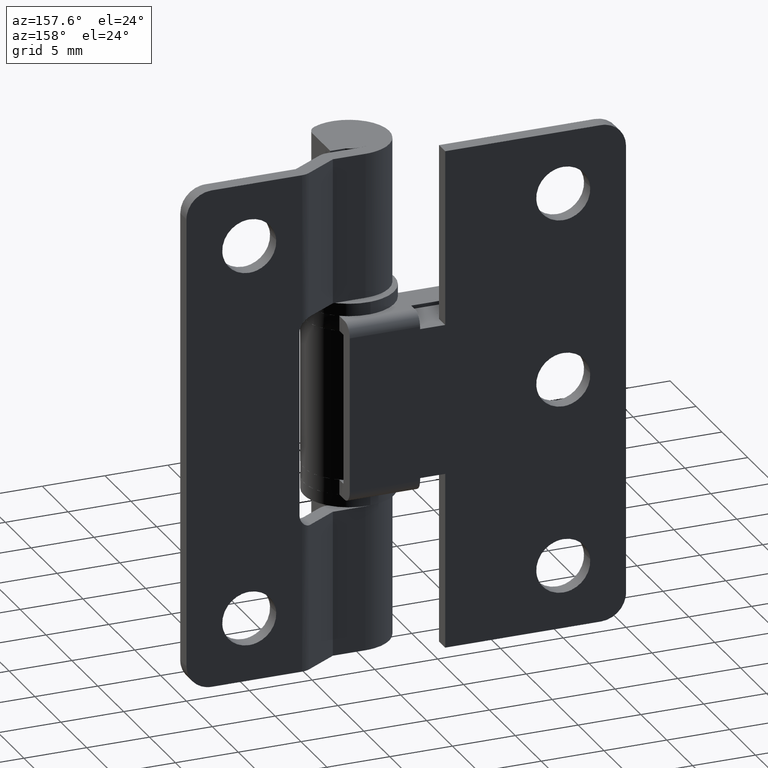
[diagram: clean part render]
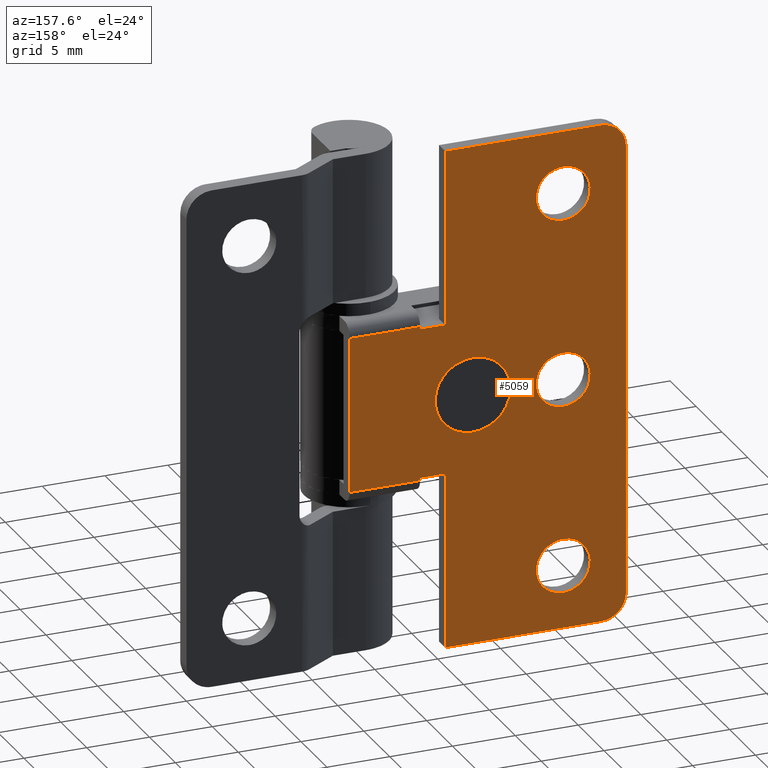
[diagram: same view with one face highlighted and labeled with its STEP entity id]
A machine part, auxiliary view. The second image highlights one B-rep face of the part: STEP entity #5059.
In plain terms, the highlighted face is a freeform B-spline surface patch.
Its self-contained STEP definition (entity closure, byte-faithful):
#4054=CARTESIAN_POINT('',(-4.805595604714565,5.000000000028292,20.183145618859559));
#4055=VERTEX_POINT('',#4054);
#4056=CARTESIAN_POINT('',(-7.800000000000000,5.0,17.0));
#4057=VERTEX_POINT('',#4056);
#4058=CARTESIAN_POINT('',(-4.805595604714566,5.000000000028292,20.183145618859566));
#4059=CARTESIAN_POINT('',(-4.799999999965211,5.000000000027887,20.091658290024675));
#4060=CARTESIAN_POINT('',(-4.799999999965750,5.000000000027455,20.000000000002100));
#4061=CARTESIAN_POINT('',(-4.799999999983398,5.000000000013308,17.000000000001020));
#4062=CARTESIAN_POINT('',(-7.800000000000000,5.0,17.0));
#4070=(BOUNDED_CURVE()B_SPLINE_CURVE(2,(#4058,#4059,#4060,#4061,#4062),.UNSPECIFIED.,.F.,.U.)B_SPLINE_CURVE_WITH_KNOTS((3,2,3),(0.239332962227399,0.250000000000000,0.500000000000000),.UNSPECIFIED.)CURVE()GEOMETRIC_REPRESENTATION_ITEM()RATIONAL_B_SPLINE_CURVE((0.976072041641977,0.987502787886313,1.0,0.707106781186548,1.0))REPRESENTATION_ITEM(''));
#4071=EDGE_CURVE('',#4055,#4057,#4070,.T.);
#4073=CARTESIAN_POINT('',(-10.794404395285440,5.000000000028292,19.816854381140441));
#4074=VERTEX_POINT('',#4073);
#4075=CARTESIAN_POINT('',(-7.800000000000000,5.0,17.0));
#4076=CARTESIAN_POINT('',(-10.622118200496001,5.000000000014147,16.999999999998920));
#4077=CARTESIAN_POINT('',(-10.794404395285436,5.000000000028293,19.816854381140441));
#4085=(BOUNDED_CURVE()B_SPLINE_CURVE(2,(#4075,#4076,#4077),.UNSPECIFIED.,.F.,.U.)B_SPLINE_CURVE_WITH_KNOTS((3,3),(0.500000000000000,0.739332962227399),.UNSPECIFIED.)CURVE()GEOMETRIC_REPRESENTATION_ITEM()RATIONAL_B_SPLINE_CURVE((1.0,0.719603993300235,0.976072041641977))REPRESENTATION_ITEM(''));
#4086=EDGE_CURVE('',#4057,#4074,#4085,.T.);
#4153=CARTESIAN_POINT('',(-7.800000000000000,5.0,23.0));
#4154=VERTEX_POINT('',#4153);
#4155=CARTESIAN_POINT('',(-7.800000000000000,5.0,23.0));
#4156=CARTESIAN_POINT('',(-4.977881799503997,5.000000000014147,23.000000000001080));
#4157=CARTESIAN_POINT('',(-4.805595604714566,5.000000000028292,20.183145618859562));
#4165=(BOUNDED_CURVE()B_SPLINE_CURVE(2,(#4155,#4156,#4157),.UNSPECIFIED.,.F.,.U.)B_SPLINE_CURVE_WITH_KNOTS((3,3),(0.0,0.239332962227399),.UNSPECIFIED.)CURVE()GEOMETRIC_REPRESENTATION_ITEM()RATIONAL_B_SPLINE_CURVE((1.0,0.719603993300234,0.976072041641978))REPRESENTATION_ITEM(''));
#4166=EDGE_CURVE('',#4154,#4055,#4165,.T.);
#4200=CARTESIAN_POINT('',(-10.794404395285433,5.000000000028292,19.816854381140441));
#4201=CARTESIAN_POINT('',(-10.800000000034792,5.000000000027886,19.908341709975332));
#4202=CARTESIAN_POINT('',(-10.800000000034251,5.000000000027454,19.999999999997900));
#4203=CARTESIAN_POINT('',(-10.800000000016603,5.000000000013308,22.999999999998987));
#4204=CARTESIAN_POINT('',(-7.800000000000000,5.0,23.0));
#4212=(BOUNDED_CURVE()B_SPLINE_CURVE(2,(#4200,#4201,#4202,#4203,#4204),.UNSPECIFIED.,.F.,.U.)B_SPLINE_CURVE_WITH_KNOTS((3,2,3),(0.739332962227399,0.750000000000000,1.0),.UNSPECIFIED.)CURVE()GEOMETRIC_REPRESENTATION_ITEM()RATIONAL_B_SPLINE_CURVE((0.976072041641978,0.987502787886313,1.0,0.707106781186548,1.0))REPRESENTATION_ITEM(''));
#4213=EDGE_CURVE('',#4074,#4154,#4212,.T.);
#4236=CARTESIAN_POINT('',(-15.0,5.0,37.150000000000013));
#4237=VERTEX_POINT('',#4236);
#4238=CARTESIAN_POINT('',(-17.143372267522381,5.0,35.168687055863693));
#4239=VERTEX_POINT('',#4238);
#4240=CARTESIAN_POINT('',(-15.0,5.0,37.150000000000013));
#4241=CARTESIAN_POINT('',(-16.987439557019741,5.0,37.150000000000006));
#4242=CARTESIAN_POINT('',(-17.143372267522384,5.0,35.168687055863678));
#4250=(BOUNDED_CURVE()B_SPLINE_CURVE(2,(#4240,#4241,#4242),.UNSPECIFIED.,.F.,.U.)B_SPLINE_CURVE_WITH_KNOTS((3,3),(0.0,0.236331300628863),.UNSPECIFIED.)CURVE()GEOMETRIC_REPRESENTATION_ITEM()RATIONAL_B_SPLINE_CURVE((1.0,0.723120658609771,0.969723356163668))REPRESENTATION_ITEM(''));
#4251=EDGE_CURVE('',#4237,#4239,#4250,.T.);
#4253=CARTESIAN_POINT('',(-12.856627732477619,5.0,34.831312944136322));
#4254=VERTEX_POINT('',#4253);
#4255=CARTESIAN_POINT('',(-12.856627732477619,5.0,34.831312944136315));
#4256=CARTESIAN_POINT('',(-12.850000000000001,5.0,34.915526269908995));
#4257=CARTESIAN_POINT('',(-12.850000000000000,5.0,35.0));
#4258=CARTESIAN_POINT('',(-12.849999999999998,4.999999999999999,37.150000000000006));
#4259=CARTESIAN_POINT('',(-15.0,5.0,37.150000000000013));
#4267=(BOUNDED_CURVE()B_SPLINE_CURVE(2,(#4255,#4256,#4257,#4258,#4259),.UNSPECIFIED.,.F.,.U.)B_SPLINE_CURVE_WITH_KNOTS((3,2,3),(0.736331300628862,0.750000000000000,1.0),.UNSPECIFIED.)CURVE()GEOMETRIC_REPRESENTATION_ITEM()RATIONAL_B_SPLINE_CURVE((0.969723356163666,0.983986122576776,1.0,0.707106781186547,1.0))REPRESENTATION_ITEM(''));
#4268=EDGE_CURVE('',#4254,#4237,#4267,.T.);
#4335=CARTESIAN_POINT('',(-15.0,5.0,32.850000000000001));
#4336=VERTEX_POINT('',#4335);
#4337=CARTESIAN_POINT('',(-17.143372267522381,5.000000000000001,35.168687055863671));
#4338=CARTESIAN_POINT('',(-17.149999999999999,5.0,35.084473730091020));
#4339=CARTESIAN_POINT('',(-17.149999999999999,5.0,35.0));
#4340=CARTESIAN_POINT('',(-17.149999999999999,4.999999999999999,32.850000000000009));
#4341=CARTESIAN_POINT('',(-15.0,5.0,32.850000000000001));
#4349=(BOUNDED_CURVE()B_SPLINE_CURVE(2,(#4337,#4338,#4339,#4340,#4341),.UNSPECIFIED.,.F.,.U.)B_SPLINE_CURVE_WITH_KNOTS((3,2,3),(0.236331300628863,0.250000000000000,0.500000000000000),.UNSPECIFIED.)CURVE()GEOMETRIC_REPRESENTATION_ITEM()RATIONAL_B_SPLINE_CURVE((0.969723356163668,0.983986122576777,1.0,0.707106781186547,1.0))REPRESENTATION_ITEM(''));
#4350=EDGE_CURVE('',#4239,#4336,#4349,.T.);
#4384=CARTESIAN_POINT('',(-15.0,5.0,32.850000000000001));
#4385=CARTESIAN_POINT('',(-13.012560442980259,5.000000000000001,32.850000000000009));
#4386=CARTESIAN_POINT('',(-12.856627732477612,5.0,34.831312944136322));
#4394=(BOUNDED_CURVE()B_SPLINE_CURVE(2,(#4384,#4385,#4386),.UNSPECIFIED.,.F.,.U.)B_SPLINE_CURVE_WITH_KNOTS((3,3),(0.500000000000000,0.736331300628863),.UNSPECIFIED.)CURVE()GEOMETRIC_REPRESENTATION_ITEM()RATIONAL_B_SPLINE_CURVE((1.0,0.723120658609771,0.969723356163667))REPRESENTATION_ITEM(''));
#4395=EDGE_CURVE('',#4336,#4254,#4394,.T.);
#4418=CARTESIAN_POINT('',(-15.0,5.0,22.149999999999999));
#4419=VERTEX_POINT('',#4418);
#4420=CARTESIAN_POINT('',(-17.143372267522381,5.0,20.168687055863678));
#4421=VERTEX_POINT('',#4420);
#4422=CARTESIAN_POINT('',(-15.0,5.0,22.149999999999999));
#4423=CARTESIAN_POINT('',(-16.987439557019751,5.000000000000001,22.150000000000006));
#4424=CARTESIAN_POINT('',(-17.143372267522373,5.000000000000001,20.168687055863682));
#4432=(BOUNDED_CURVE()B_SPLINE_CURVE(2,(#4422,#4423,#4424),.UNSPECIFIED.,.F.,.U.)B_SPLINE_CURVE_WITH_KNOTS((3,3),(0.0,0.236331300628863),.UNSPECIFIED.)CURVE()GEOMETRIC_REPRESENTATION_ITEM()RATIONAL_B_SPLINE_CURVE((1.0,0.723120658609770,0.969723356163668))REPRESENTATION_ITEM(''));
#4433=EDGE_CURVE('',#4419,#4421,#4432,.T.);
#4435=CARTESIAN_POINT('',(-12.856627732477619,5.0,19.831312944136322));
#4436=VERTEX_POINT('',#4435);
#4437=CARTESIAN_POINT('',(-12.856627732477612,5.0,19.831312944136318));
#4438=CARTESIAN_POINT('',(-12.850000000000003,5.000000000000001,19.915526269908991));
#4439=CARTESIAN_POINT('',(-12.850000000000000,5.0,20.0));
#4440=CARTESIAN_POINT('',(-12.849999999999998,4.999999999999999,22.150000000000006));
#4441=CARTESIAN_POINT('',(-15.0,5.0,22.149999999999999));
#4449=(BOUNDED_CURVE()B_SPLINE_CURVE(2,(#4437,#4438,#4439,#4440,#4441),.UNSPECIFIED.,.F.,.U.)B_SPLINE_CURVE_WITH_KNOTS((3,2,3),(0.736331300628863,0.750000000000000,1.0),.UNSPECIFIED.)CURVE()GEOMETRIC_REPRESENTATION_ITEM()RATIONAL_B_SPLINE_CURVE((0.969723356163667,0.983986122576777,1.0,0.707106781186547,1.0))REPRESENTATION_ITEM(''));
#4450=EDGE_CURVE('',#4436,#4419,#4449,.T.);
#4517=CARTESIAN_POINT('',(-15.0,5.0,17.850000000000001));
#4518=VERTEX_POINT('',#4517);
#4519=CARTESIAN_POINT('',(-17.143372267522384,5.0,20.168687055863678));
#4520=CARTESIAN_POINT('',(-17.149999999999995,5.0,20.084473730091013));
#4521=CARTESIAN_POINT('',(-17.149999999999999,5.0,20.0));
#4522=CARTESIAN_POINT('',(-17.149999999999999,4.999999999999999,17.849999999999998));
#4523=CARTESIAN_POINT('',(-15.0,5.0,17.850000000000001));
#4531=(BOUNDED_CURVE()B_SPLINE_CURVE(2,(#4519,#4520,#4521,#4522,#4523),.UNSPECIFIED.,.F.,.U.)B_SPLINE_CURVE_WITH_KNOTS((3,2,3),(0.236331300628863,0.250000000000000,0.500000000000000),.UNSPECIFIED.)CURVE()GEOMETRIC_REPRESENTATION_ITEM()RATIONAL_B_SPLINE_CURVE((0.969723356163668,0.983986122576777,1.0,0.707106781186547,1.0))REPRESENTATION_ITEM(''));
#4532=EDGE_CURVE('',#4421,#4518,#4531,.T.);
#4566=CARTESIAN_POINT('',(-15.0,5.0,17.850000000000001));
#4567=CARTESIAN_POINT('',(-13.012560442980259,5.000000000000001,17.849999999999998));
#4568=CARTESIAN_POINT('',(-12.856627732477612,5.0,19.831312944136318));
#4576=(BOUNDED_CURVE()B_SPLINE_CURVE(2,(#4566,#4567,#4568),.UNSPECIFIED.,.F.,.U.)B_SPLINE_CURVE_WITH_KNOTS((3,3),(0.500000000000000,0.736331300628863),.UNSPECIFIED.)CURVE()GEOMETRIC_REPRESENTATION_ITEM()RATIONAL_B_SPLINE_CURVE((1.0,0.723120658609771,0.969723356163667))REPRESENTATION_ITEM(''));
#4577=EDGE_CURVE('',#4518,#4436,#4576,.T.);
#4600=CARTESIAN_POINT('',(-15.0,5.0,7.150000000000100));
#4601=VERTEX_POINT('',#4600);
#4602=CARTESIAN_POINT('',(-17.143372267522381,5.0,5.168687055863781));
#4603=VERTEX_POINT('',#4602);
#4604=CARTESIAN_POINT('',(-15.0,5.0,7.150000000000100));
#4605=CARTESIAN_POINT('',(-16.987439557019734,5.000000000000001,7.150000000000100));
#4606=CARTESIAN_POINT('',(-17.143372267522381,5.000000000000001,5.168687055863781));
#4614=(BOUNDED_CURVE()B_SPLINE_CURVE(2,(#4604,#4605,#4606),.UNSPECIFIED.,.F.,.U.)B_SPLINE_CURVE_WITH_KNOTS((3,3),(0.0,0.236331300628863),.UNSPECIFIED.)CURVE()GEOMETRIC_REPRESENTATION_ITEM()RATIONAL_B_SPLINE_CURVE((1.0,0.723120658609771,0.969723356163668))REPRESENTATION_ITEM(''));
#4615=EDGE_CURVE('',#4601,#4603,#4614,.T.);
#4617=CARTESIAN_POINT('',(-12.856627732477619,5.0,4.831312944136418));
#4618=VERTEX_POINT('',#4617);
#4619=CARTESIAN_POINT('',(-12.856627732477619,5.0,4.831312944136418));
#4620=CARTESIAN_POINT('',(-12.850000000000001,5.0,4.915526269909088));
#4621=CARTESIAN_POINT('',(-12.850000000000000,5.0,5.000000000000100));
#4622=CARTESIAN_POINT('',(-12.849999999999998,4.999999999999999,7.150000000000100));
#4623=CARTESIAN_POINT('',(-15.0,5.0,7.150000000000100));
#4631=(BOUNDED_CURVE()B_SPLINE_CURVE(2,(#4619,#4620,#4621,#4622,#4623),.UNSPECIFIED.,.F.,.U.)B_SPLINE_CURVE_WITH_KNOTS((3,2,3),(0.736331300628863,0.750000000000000,1.0),.UNSPECIFIED.)CURVE()GEOMETRIC_REPRESENTATION_ITEM()RATIONAL_B_SPLINE_CURVE((0.969723356163668,0.983986122576777,1.0,0.707106781186547,1.0))REPRESENTATION_ITEM(''));
#4632=EDGE_CURVE('',#4618,#4601,#4631,.T.);
#4699=CARTESIAN_POINT('',(-15.0,5.0,2.850000000000100));
#4700=VERTEX_POINT('',#4699);
#4701=CARTESIAN_POINT('',(-17.143372267522381,4.999999999999999,5.168687055863781));
#4702=CARTESIAN_POINT('',(-17.149999999999999,4.999999999999999,5.084473730091109));
#4703=CARTESIAN_POINT('',(-17.149999999999999,5.0,5.000000000000100));
#4704=CARTESIAN_POINT('',(-17.149999999999999,4.999999999999999,2.850000000000100));
#4705=CARTESIAN_POINT('',(-15.0,5.0,2.850000000000100));
#4713=(BOUNDED_CURVE()B_SPLINE_CURVE(2,(#4701,#4702,#4703,#4704,#4705),.UNSPECIFIED.,.F.,.U.)B_SPLINE_CURVE_WITH_KNOTS((3,2,3),(0.236331300628863,0.250000000000000,0.500000000000000),.UNSPECIFIED.)CURVE()GEOMETRIC_REPRESENTATION_ITEM()RATIONAL_B_SPLINE_CURVE((0.969723356163668,0.983986122576777,1.0,0.707106781186547,1.0))REPRESENTATION_ITEM(''));
#4714=EDGE_CURVE('',#4603,#4700,#4713,.T.);
#4748=CARTESIAN_POINT('',(-15.0,5.0,2.850000000000100));
#4749=CARTESIAN_POINT('',(-13.012560442980257,4.999999999999998,2.850000000000100));
#4750=CARTESIAN_POINT('',(-12.856627732477619,5.0,4.831312944136418));
#4758=(BOUNDED_CURVE()B_SPLINE_CURVE(2,(#4748,#4749,#4750),.UNSPECIFIED.,.F.,.U.)B_SPLINE_CURVE_WITH_KNOTS((3,3),(0.500000000000000,0.736331300628863),.UNSPECIFIED.)CURVE()GEOMETRIC_REPRESENTATION_ITEM()RATIONAL_B_SPLINE_CURVE((1.0,0.723120658609771,0.969723356163668))REPRESENTATION_ITEM(''));
#4759=EDGE_CURVE('',#4700,#4618,#4758,.T.);
#4795=CARTESIAN_POINT('',(-18.0,5.0,40.0));
#4796=VERTEX_POINT('',#4795);
#4802=CARTESIAN_POINT('',(-20.0,5.0,38.0));
#4803=VERTEX_POINT('',#4802);
#4804=CARTESIAN_POINT('',(-20.0,5.0,38.0));
#4805=CARTESIAN_POINT('',(-19.999999999999996,5.000000000000001,39.999999999999993));
#4806=CARTESIAN_POINT('',(-18.0,5.0,40.0));
#4814=(BOUNDED_CURVE()B_SPLINE_CURVE(2,(#4804,#4805,#4806),.UNSPECIFIED.,.F.,.U.)CURVE()GEOMETRIC_REPRESENTATION_ITEM()QUASI_UNIFORM_CURVE()RATIONAL_B_SPLINE_CURVE((1.0,0.707106781186548,1.0))REPRESENTATION_ITEM(''));
#4815=EDGE_CURVE('',#4803,#4796,#4814,.T.);
#4856=CARTESIAN_POINT('',(-20.0,5.0,2.0));
#4857=VERTEX_POINT('',#4856);
#4863=CARTESIAN_POINT('',(-18.0,5.0,0.0));
#4864=VERTEX_POINT('',#4863);
#4865=CARTESIAN_POINT('',(-18.0,5.0,0.0));
#4866=CARTESIAN_POINT('',(-19.999999999999996,5.000000000000001,0.0));
#4867=CARTESIAN_POINT('',(-20.0,5.0,2.0));
#4875=(BOUNDED_CURVE()B_SPLINE_CURVE(2,(#4865,#4866,#4867),.UNSPECIFIED.,.F.,.U.)CURVE()GEOMETRIC_REPRESENTATION_ITEM()QUASI_UNIFORM_CURVE()RATIONAL_B_SPLINE_CURVE((1.0,0.707106781186548,1.0))REPRESENTATION_ITEM(''));
#4876=EDGE_CURVE('',#4864,#4857,#4875,.T.);
#4899=CARTESIAN_POINT('',(-5.600000000000000,5.0,0.0));
#4900=VERTEX_POINT('',#4899);
#4901=CARTESIAN_POINT('',(-18.0,5.0,0.0));
#4902=CARTESIAN_POINT('',(-5.600000000000000,5.0,0.0));
#4903=QUASI_UNIFORM_CURVE('',1,(#4901,#4902),.UNSPECIFIED.,.F.,.U.);
#4904=EDGE_CURVE('',#4864,#4900,#4903,.T.);
#4919=CARTESIAN_POINT('',(-20.0,5.0,2.0));
#4920=CARTESIAN_POINT('',(-20.0,5.0,38.0));
#4921=QUASI_UNIFORM_CURVE('',1,(#4919,#4920),.UNSPECIFIED.,.F.,.U.);
#4922=EDGE_CURVE('',#4857,#4803,#4921,.T.);
#4939=CARTESIAN_POINT('',(-5.600000000000000,5.0,40.0));
#4940=VERTEX_POINT('',#4939);
#4941=CARTESIAN_POINT('',(-18.0,5.0,40.0));
#4942=CARTESIAN_POINT('',(-5.600000000000000,5.0,40.0));
#4943=QUASI_UNIFORM_CURVE('',1,(#4941,#4942),.UNSPECIFIED.,.F.,.U.);
#4944=EDGE_CURVE('',#4796,#4940,#4943,.T.);
#4962=CARTESIAN_POINT('',(-21.098899957359730,5.0,41.997999922472239));
#4963=CARTESIAN_POINT('',(-21.098899957359730,5.0,-1.998000995355844));
#4964=CARTESIAN_POINT('',(3.098900547445714,5.0,41.997999922472239));
#4965=CARTESIAN_POINT('',(3.098900547445714,5.0,-1.998000995355844));
#4966=B_SPLINE_SURFACE_WITH_KNOTS('',1,1,((#4962,#4964),(#4963,#4965)),.UNSPECIFIED.,.F.,.F.,.U.,(2,2),(2,2),(0.0,43.996000917828077),(0.0,24.197800504805439),.UNSPECIFIED.);
#4967=CARTESIAN_POINT('',(2.0,5.0,13.800000000000001));
#4968=VERTEX_POINT('',#4967);
#4969=CARTESIAN_POINT('',(2.0,5.0,26.199999999999999));
#4970=VERTEX_POINT('',#4969);
#4971=CARTESIAN_POINT('',(2.0,5.0,13.800000000000001));
#4972=CARTESIAN_POINT('',(2.0,5.0,26.199999999999999));
#4973=QUASI_UNIFORM_CURVE('',1,(#4971,#4972),.UNSPECIFIED.,.F.,.U.);
#4974=EDGE_CURVE('',#4968,#4970,#4973,.T.);
#4975=ORIENTED_EDGE('',*,*,#4974,.F.);
#4976=CARTESIAN_POINT('',(-3.600000000000095,5.0,13.800000000000001));
#4977=VERTEX_POINT('',#4976);
#4978=CARTESIAN_POINT('',(2.0,5.0,13.800000000000001));
#4979=CARTESIAN_POINT('',(-3.600000000000095,5.0,13.800000000000001));
#4980=QUASI_UNIFORM_CURVE('',1,(#4978,#4979),.UNSPECIFIED.,.F.,.U.);
#4981=EDGE_CURVE('',#4968,#4977,#4980,.T.);
#4982=ORIENTED_EDGE('',*,*,#4981,.T.);
#4983=CARTESIAN_POINT('',(-3.600000000000095,5.0,14.0));
#4984=VERTEX_POINT('',#4983);
#4985=CARTESIAN_POINT('',(-3.600000000000095,5.0,14.0));
#4986=CARTESIAN_POINT('',(-3.600000000000095,5.0,13.800000000000001));
#4987=QUASI_UNIFORM_CURVE('',1,(#4985,#4986),.UNSPECIFIED.,.F.,.U.);
#4988=EDGE_CURVE('',#4984,#4977,#4987,.T.);
#4989=ORIENTED_EDGE('',*,*,#4988,.F.);
#4990=CARTESIAN_POINT('',(-5.600000000000000,5.0,14.0));
#4991=VERTEX_POINT('',#4990);
#4992=CARTESIAN_POINT('',(-5.600000000000000,5.0,14.0));
#4993=CARTESIAN_POINT('',(-3.600000000000095,5.0,14.0));
#4994=QUASI_UNIFORM_CURVE('',1,(#4992,#4993),.UNSPECIFIED.,.F.,.U.);
#4995=EDGE_CURVE('',#4991,#4984,#4994,.T.);
#4996=ORIENTED_EDGE('',*,*,#4995,.F.);
#4997=CARTESIAN_POINT('',(-5.600000000000000,5.0,0.0));
#4998=CARTESIAN_POINT('',(-5.600000000000000,5.0,14.0));
#4999=QUASI_UNIFORM_CURVE('',1,(#4997,#4998),.UNSPECIFIED.,.F.,.U.);
#5000=EDGE_CURVE('',#4900,#4991,#4999,.T.);
#5001=ORIENTED_EDGE('',*,*,#5000,.F.);
#5002=ORIENTED_EDGE('',*,*,#4904,.F.);
#5003=ORIENTED_EDGE('',*,*,#4876,.T.);
#5004=ORIENTED_EDGE('',*,*,#4922,.T.);
#5005=ORIENTED_EDGE('',*,*,#4815,.T.);
#5006=ORIENTED_EDGE('',*,*,#4944,.T.);
#5007=CARTESIAN_POINT('',(-5.600000000000000,5.0,26.0));
#5008=VERTEX_POINT('',#5007);
#5009=CARTESIAN_POINT('',(-5.600000000000000,5.0,40.0));
#5010=CARTESIAN_POINT('',(-5.600000000000000,5.0,26.0));
#5011=QUASI_UNIFORM_CURVE('',1,(#5009,#5010),.UNSPECIFIED.,.F.,.U.);
#5012=EDGE_CURVE('',#4940,#5008,#5011,.T.);
#5013=ORIENTED_EDGE('',*,*,#5012,.T.);
#5014=CARTESIAN_POINT('',(-3.600000000000095,5.0,26.0));
#5015=VERTEX_POINT('',#5014);
#5016=CARTESIAN_POINT('',(-5.600000000000000,5.0,26.0));
#5017=CARTESIAN_POINT('',(-3.600000000000095,5.0,26.0));
#5018=QUASI_UNIFORM_CURVE('',1,(#5016,#5017),.UNSPECIFIED.,.F.,.U.);
#5019=EDGE_CURVE('',#5008,#5015,#5018,.T.);
#5020=ORIENTED_EDGE('',*,*,#5019,.T.);
#5021=CARTESIAN_POINT('',(-3.600000000000095,5.0,26.199999999999999));
#5022=VERTEX_POINT('',#5021);
#5023=CARTESIAN_POINT('',(-3.600000000000095,5.0,26.0));
#5024=CARTESIAN_POINT('',(-3.600000000000095,5.0,26.199999999999999));
#5025=QUASI_UNIFORM_CURVE('',1,(#5023,#5024),.UNSPECIFIED.,.F.,.U.);
#5026=EDGE_CURVE('',#5015,#5022,#5025,.T.);
#5027=ORIENTED_EDGE('',*,*,#5026,.T.);
#5028=CARTESIAN_POINT('',(-3.600000000000095,5.0,26.199999999999999));
#5029=CARTESIAN_POINT('',(2.0,5.0,26.199999999999999));
#5030=QUASI_UNIFORM_CURVE('',1,(#5028,#5029),.UNSPECIFIED.,.F.,.U.);
#5031=EDGE_CURVE('',#5022,#4970,#5030,.T.);
#5032=ORIENTED_EDGE('',*,*,#5031,.T.);
#5033=EDGE_LOOP('',(#4975,#4982,#4989,#4996,#5001,#5002,#5003,#5004,#5005,#5006,#5013,#5020,#5027,#5032));
#5034=FACE_OUTER_BOUND('',#5033,.T.);
#5035=ORIENTED_EDGE('',*,*,#4759,.T.);
#5036=ORIENTED_EDGE('',*,*,#4632,.T.);
#5037=ORIENTED_EDGE('',*,*,#4615,.T.);
#5038=ORIENTED_EDGE('',*,*,#4714,.T.);
#5039=EDGE_LOOP('',(#5035,#5036,#5037,#5038));
#5040=FACE_BOUND('',#5039,.T.);
#5041=ORIENTED_EDGE('',*,*,#4577,.T.);
#5042=ORIENTED_EDGE('',*,*,#4450,.T.);
#5043=ORIENTED_EDGE('',*,*,#4433,.T.);
#5044=ORIENTED_EDGE('',*,*,#4532,.T.);
#5045=EDGE_LOOP('',(#5041,#5042,#5043,#5044));
#5046=FACE_BOUND('',#5045,.T.);
#5047=ORIENTED_EDGE('',*,*,#4395,.T.);
#5048=ORIENTED_EDGE('',*,*,#4268,.T.);
#5049=ORIENTED_EDGE('',*,*,#4251,.T.);
#5050=ORIENTED_EDGE('',*,*,#4350,.T.);
#5051=EDGE_LOOP('',(#5047,#5048,#5049,#5050));
#5052=FACE_BOUND('',#5051,.T.);
#5053=ORIENTED_EDGE('',*,*,#4086,.F.);
#5054=ORIENTED_EDGE('',*,*,#4071,.F.);
#5055=ORIENTED_EDGE('',*,*,#4166,.F.);
#5056=ORIENTED_EDGE('',*,*,#4213,.F.);
#5057=EDGE_LOOP('',(#5053,#5054,#5055,#5056));
#5058=FACE_BOUND('',#5057,.T.);
#5059=ADVANCED_FACE('',(#5034,#5040,#5046,#5052,#5058),#4966,.F.);